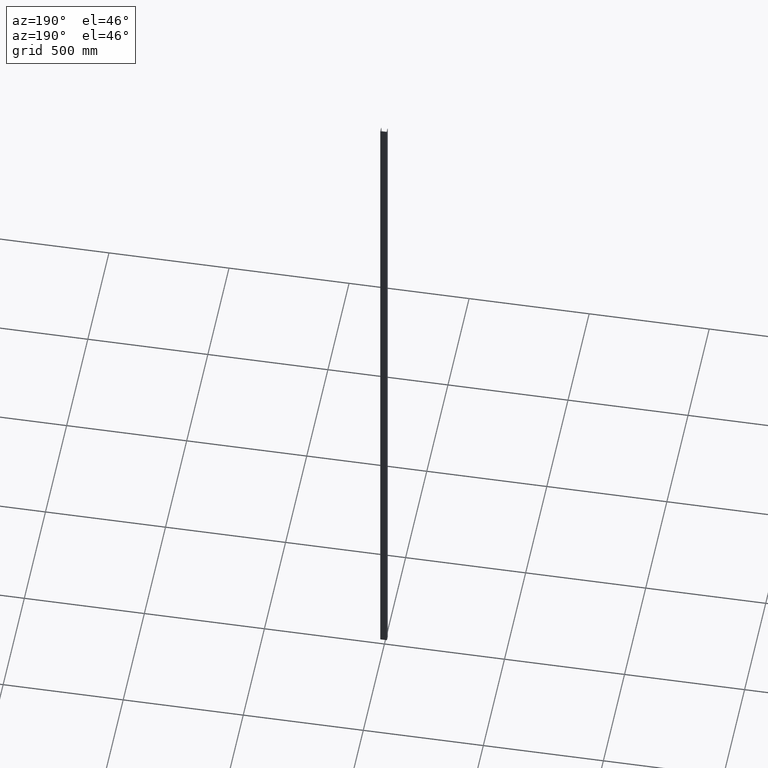
[diagram: clean part render]
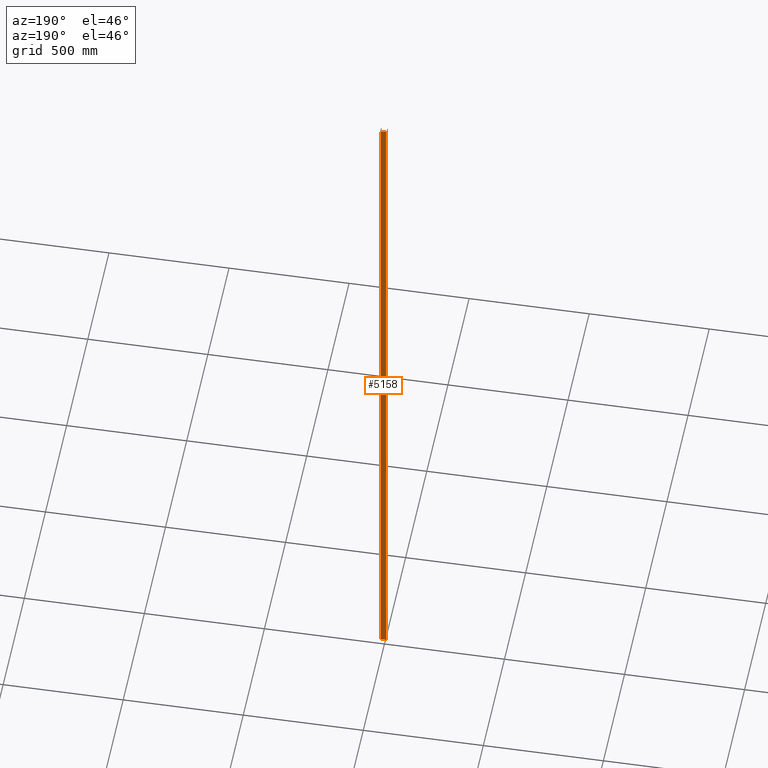
[diagram: same view with one face highlighted and labeled with its STEP entity id]
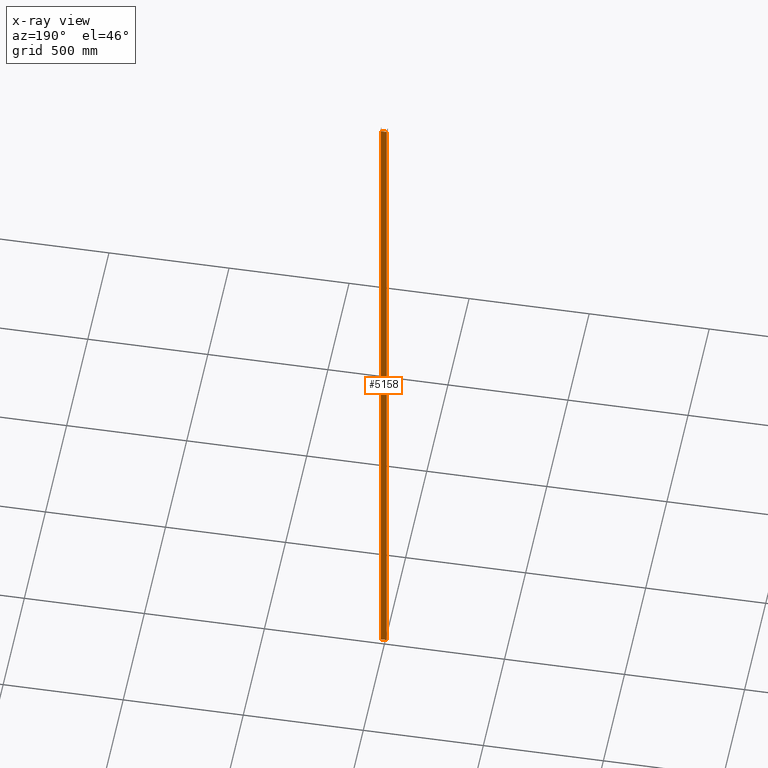
[diagram: x-ray of the same camera — body ghosted, the highlighted face saturated]
A machine part, auxiliary view. The second image highlights one B-rep face of the part: STEP entity #5158.
The next image is the same camera in x-ray: the body ghosted, the highlighted face saturated — about 0% of this face is hidden behind the body in this view.
In plain terms, the highlighted planar face has unit normal (-0, 1, 0).
Its self-contained STEP definition (entity closure, byte-faithful):
#73 = LINE ( 'NONE', #840, #11201 ) ;
#150 = VERTEX_POINT ( 'NONE', #1604 ) ;
#840 = CARTESIAN_POINT ( 'NONE',  ( -12.00000000000000200, 20.00000000000000000, 1500.000000000000000 ) ) ;
#1604 = CARTESIAN_POINT ( 'NONE',  ( -12.00000000000000200, 20.00000000000000000, 1500.000000000000000 ) ) ;
#1986 = PLANE ( 'NONE',  #15336 ) ;
#2319 = VERTEX_POINT ( 'NONE', #3267 ) ;
#2673 = ORIENTED_EDGE ( 'NONE', *, *, #14882, .T. ) ;
#3142 = DIRECTION ( 'NONE',  ( -1.000000000000000000, -1.445602896647339200E-016, 0.0000000000000000000 ) ) ;
#3267 = CARTESIAN_POINT ( 'NONE',  ( 11.99999999999999800, 20.00000000000000400, -1500.000000000000000 ) ) ;
#3338 = VECTOR ( 'NONE', #3579, 1000.000000000000000 ) ;
#3579 = DIRECTION ( 'NONE',  ( 1.000000000000000000, 1.445602896647339200E-016, 0.0000000000000000000 ) ) ;
#3846 = CARTESIAN_POINT ( 'NONE',  ( 11.99999999999999800, 20.00000000000000400, 1500.000000000000000 ) ) ;
#3852 = LINE ( 'NONE', #4188, #6463 ) ;
#4188 = CARTESIAN_POINT ( 'NONE',  ( 11.99999999999999800, 20.00000000000000400, 1500.000000000000000 ) ) ;
#4579 = ORIENTED_EDGE ( 'NONE', *, *, #9058, .T. ) ;
#4950 = VERTEX_POINT ( 'NONE', #13341 ) ;
#5158 = ADVANCED_FACE ( 'NONE', ( #6706 ), #1986, .T. ) ;
#6166 = EDGE_CURVE ( 'NONE', #4950, #2319, #10936, .T. ) ;
#6463 = VECTOR ( 'NONE', #7862, 1000.000000000000000 ) ;
#6706 = FACE_OUTER_BOUND ( 'NONE', #8170, .T. ) ;
#7727 = VECTOR ( 'NONE', #9611, 1000.000000000000000 ) ;
#7862 = DIRECTION ( 'NONE',  ( -0.0000000000000000000, -0.0000000000000000000, -1.000000000000000000 ) ) ;
#8170 = EDGE_LOOP ( 'NONE', ( #9318, #8961, #4579, #2673 ) ) ;
#8961 = ORIENTED_EDGE ( 'NONE', *, *, #13524, .F. ) ;
#9058 = EDGE_CURVE ( 'NONE', #150, #9758, #73, .T. ) ;
#9318 = ORIENTED_EDGE ( 'NONE', *, *, #6166, .F. ) ;
#9611 = DIRECTION ( 'NONE',  ( -0.0000000000000000000, -0.0000000000000000000, -1.000000000000000000 ) ) ;
#9758 = VERTEX_POINT ( 'NONE', #3846 ) ;
#10297 = CARTESIAN_POINT ( 'NONE',  ( -12.00000000000000200, 20.00000000000000000, 1500.000000000000000 ) ) ;
#10398 = DIRECTION ( 'NONE',  ( -1.445602896647339200E-016, 1.000000000000000000, 0.0000000000000000000 ) ) ;
#10936 = LINE ( 'NONE', #14222, #3338 ) ;
#11201 = VECTOR ( 'NONE', #12796, 1000.000000000000000 ) ;
#12013 = CARTESIAN_POINT ( 'NONE',  ( -12.00000000000000200, 20.00000000000000000, 1500.000000000000000 ) ) ;
#12796 = DIRECTION ( 'NONE',  ( 1.000000000000000000, 1.445602896647339200E-016, 0.0000000000000000000 ) ) ;
#13260 = LINE ( 'NONE', #12013, #7727 ) ;
#13341 = CARTESIAN_POINT ( 'NONE',  ( -12.00000000000000200, 20.00000000000000000, -1500.000000000000000 ) ) ;
#13524 = EDGE_CURVE ( 'NONE', #150, #4950, #13260, .T. ) ;
#14222 = CARTESIAN_POINT ( 'NONE',  ( -12.00000000000000200, 20.00000000000000000, -1500.000000000000000 ) ) ;
#14882 = EDGE_CURVE ( 'NONE', #9758, #2319, #3852, .T. ) ;
#15336 = AXIS2_PLACEMENT_3D ( 'NONE', #10297, #10398, #3142 ) ;